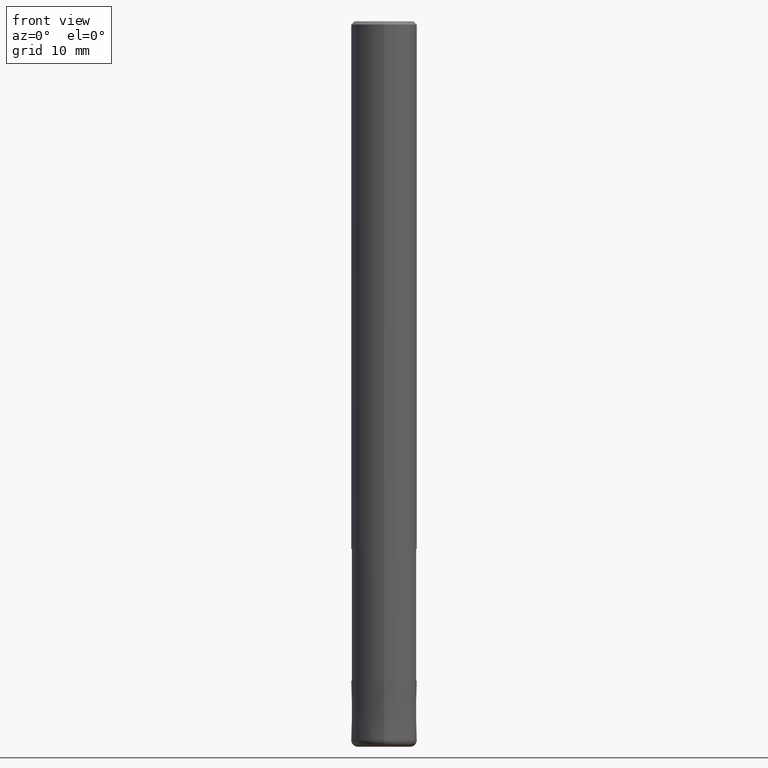
[diagram: clean part render]
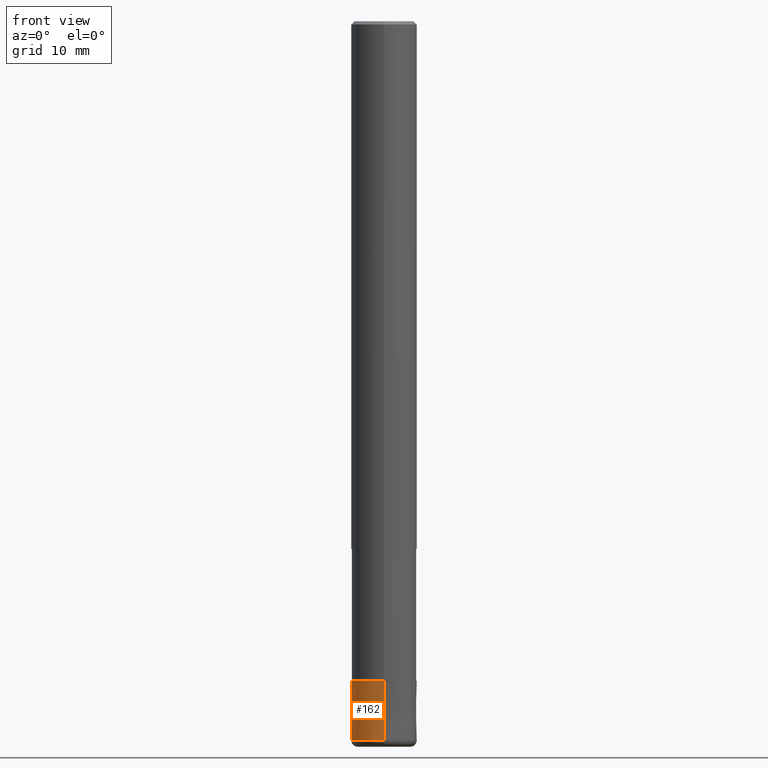
[diagram: same view with one face highlighted and labeled with its STEP entity id]
A machine part, front view. The second image highlights one B-rep face of the part: STEP entity #162.
In plain terms, the highlighted conical surface has half-angle 0.001 deg.
Its self-contained STEP definition (entity closure, byte-faithful):
#104=EDGE_CURVE('',#150,#184,#242,.T.);
#126=EDGE_CURVE('',#174,#150,#267,.T.);
#150=VERTEX_POINT('',#295);
#162=ADVANCED_FACE('',(#309),#310,.T.);
#172=EDGE_CURVE('',#190,#184,#320,.T.);
#174=VERTEX_POINT('',#322);
#184=VERTEX_POINT('',#332);
#188=EDGE_CURVE('',#190,#174,#337,.T.);
#190=VERTEX_POINT('',#339);
#242=LINE('',#390,#391);
#267=CIRCLE('',#421,4.9999);
#295=CARTESIAN_POINT('',(0.0,4.9999,-100.0));
#309=FACE_OUTER_BOUND('',#470,.T.);
#310=CONICAL_SURFACE('',#471,4.99995,1.1111111110628E-005);
#320=CIRCLE('',#486,5.0);
#322=CARTESIAN_POINT('',(6.1229093084765E-016,-4.9999,-100.0));
#332=CARTESIAN_POINT('',(0.0,5.0,-109.0));
#337=LINE('',#508,#509);
#339=CARTESIAN_POINT('',(6.12303176911189E-016,-5.0,-109.0));
#390=CARTESIAN_POINT('',(-6.12297053879419E-016,4.99995,-104.5));
#391=VECTOR('',#553,1.0);
#421=AXIS2_PLACEMENT_3D('',#580,#581,#582);
#470=EDGE_LOOP('',(#641,#642,#643,#644));
#471=AXIS2_PLACEMENT_3D('',#645,#646,#647);
#486=AXIS2_PLACEMENT_3D('',#655,#656,#657);
#508=CARTESIAN_POINT('',(6.12297053879419E-016,-4.99995,-104.5));
#509=VECTOR('',#673,1.0);
#553=DIRECTION('',(-1.36067372638214E-021,1.11111111103993E-005,-0.999999999938272));
#580=CARTESIAN_POINT('',(0.0,0.0,-100.0));
#581=DIRECTION('',(0.0,0.0,-1.0));
#582=DIRECTION('',(0.0,1.0,0.0));
#641=ORIENTED_EDGE('',*,*,#104,.T.);
#642=ORIENTED_EDGE('',*,*,#172,.F.);
#643=ORIENTED_EDGE('',*,*,#188,.T.);
#644=ORIENTED_EDGE('',*,*,#126,.T.);
#645=CARTESIAN_POINT('',(0.0,0.0,-104.5));
#646=DIRECTION('',(0.0,-0.0,-1.0));
#647=DIRECTION('',(0.0,1.0,0.0));
#655=CARTESIAN_POINT('',(0.0,0.0,-109.0));
#656=DIRECTION('',(0.0,0.0,-1.0));
#657=DIRECTION('',(0.0,1.0,0.0));
#673=DIRECTION('',(-1.36067372638214E-021,1.11111111103993E-005,0.999999999938272));